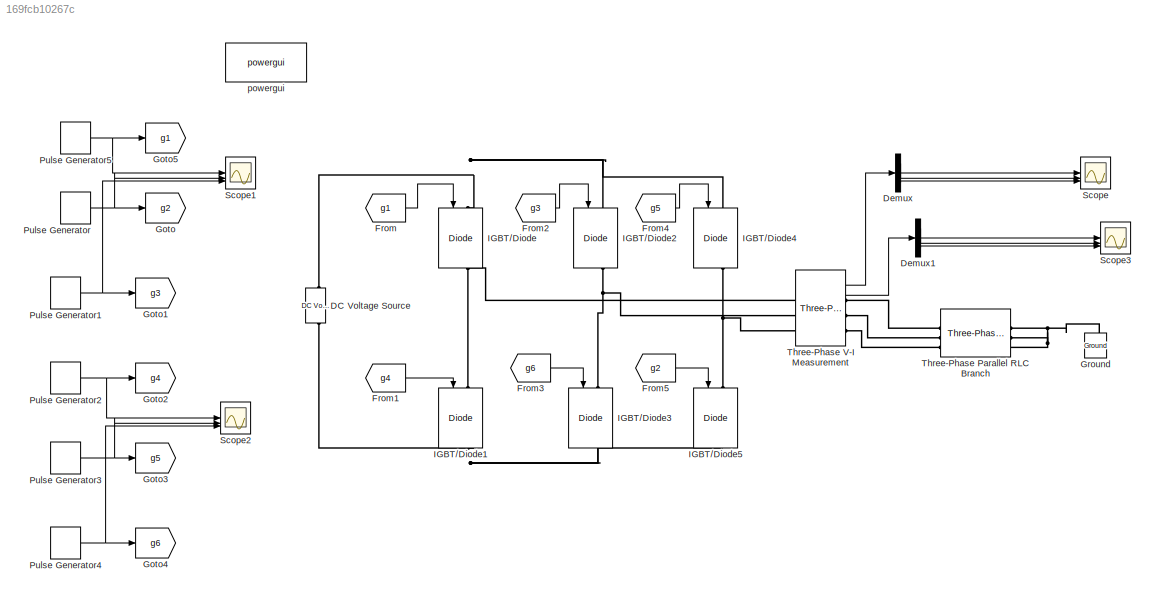
MODEL slx_169fcb10267c
KIND model
CONFIG AbsTol = auto
CONFIG EnableMultiTasking = off
CONFIG FixedStep = auto
CONFIG MaxStep = 20e-7
CONFIG MinStep = 20e-8
CONFIG RelTol = 1e-3
CONFIG SampleTimeConstraint = Unconstrained
CONFIG SolverName = ode45
CONFIG StartTime = 0.0
CONFIG StopTime = 1
BLOCK [Reference] DC Voltage Source  REF=spsDCVoltageSourceLib/DC Voltage Source
  SourceBlock = spsDCVoltageSourceLib/DC Voltage Source
  SourceType = DC Voltage Source
BLOCK [Demux] Demux
  Outputs = 3
BLOCK [Demux] Demux1
  Outputs = 3
BLOCK [From] From
  GotoTag = g1
BLOCK [From] From1
  GotoTag = g4
BLOCK [From] From2
  GotoTag = g3
BLOCK [From] From3
  GotoTag = g6
BLOCK [From] From4
  GotoTag = g5
BLOCK [From] From5
  GotoTag = g2
BLOCK [Goto] Goto
  GotoTag = g2
BLOCK [Goto] Goto1
  GotoTag = g3
BLOCK [Goto] Goto2
  GotoTag = g4
BLOCK [Goto] Goto3
  GotoTag = g5
BLOCK [Goto] Goto4
  GotoTag = g6
BLOCK [Goto] Goto5
  GotoTag = g1
BLOCK [Reference] Ground  REF=spsGroundLib/Ground
  NameLocation = right
  SourceBlock = spsGroundLib/Ground
  SourceType = Ground
BLOCK [Reference] IGBT//Diode  REF=spsIGBTDiodeLib/IGBT//Diode
  NameLocation = left
  SourceBlock = spsIGBTDiodeLib/IGBT//Diode
  SourceType = IGBT/Diode
BLOCK [Reference] IGBT//Diode1  REF=spsIGBTDiodeLib/IGBT//Diode
  NameLocation = left
  SourceBlock = spsIGBTDiodeLib/IGBT//Diode
  SourceType = IGBT/Diode
BLOCK [Reference] IGBT//Diode2  REF=spsIGBTDiodeLib/IGBT//Diode
  NameLocation = left
  SourceBlock = spsIGBTDiodeLib/IGBT//Diode
  SourceType = IGBT/Diode
BLOCK [Reference] IGBT//Diode3  REF=spsIGBTDiodeLib/IGBT//Diode
  NameLocation = left
  SourceBlock = spsIGBTDiodeLib/IGBT//Diode
  SourceType = IGBT/Diode
BLOCK [Reference] IGBT//Diode4  REF=spsIGBTDiodeLib/IGBT//Diode
  NameLocation = left
  SourceBlock = spsIGBTDiodeLib/IGBT//Diode
  SourceType = IGBT/Diode
BLOCK [Reference] IGBT//Diode5  REF=spsIGBTDiodeLib/IGBT//Diode
  NameLocation = left
  SourceBlock = spsIGBTDiodeLib/IGBT//Diode
  SourceType = IGBT/Diode
BLOCK [DiscretePulseGenerator] Pulse Generator
  Period = 0.1
  PhaseDelay = 0.1/6*1
  PulseType = Time based
  PulseWidth = 100/3
BLOCK [DiscretePulseGenerator] Pulse Generator1
  Period = 0.1
  PhaseDelay = 0.1/3
  PulseType = Time based
  PulseWidth = 100/3
BLOCK [DiscretePulseGenerator] Pulse Generator2
  Period = 0.1
  PhaseDelay = 0.1/2
  PulseType = Time based
  PulseWidth = 100/3
BLOCK [DiscretePulseGenerator] Pulse Generator3
  Period = 0.1
  PhaseDelay = 0.2/3
  PulseType = Time based
  PulseWidth = 100/3
BLOCK [DiscretePulseGenerator] Pulse Generator4
  Period = 0.1
  PhaseDelay = 0.5/6
  PulseType = Time based
  PulseWidth = 100/3
BLOCK [DiscretePulseGenerator] Pulse Generator5
  Period = 0.1
  PulseType = Time based
  PulseWidth = 100/3
BLOCK [Scope] Scope
  Floating = off
  NumInputPorts = 3
  ScopeSpecificationString = Simulink.scopes.TimeScopeBlockCfg('CurrentConfiguration', extmgr.ConfigurationSet(extmgr.Configuration('Core','General UI',true),extmgr.Configuration('Core','Source UI',true),extmgr.Configuration('Sources','WiredSimulink',true),extmgr.Configuration('Visuals','Time Domain',true,'SerializedDisplays',{struct('MinYLimReal','-31.24969','MaxYLimReal','31.24969','YLabelReal','','MinYLimMag','0.00000','Ma...<+2738ch>
BLOCK [Scope] Scope1
  Floating = off
  NumInputPorts = 3
  ScopeSpecificationString = Simulink.scopes.TimeScopeBlockCfg('CurrentConfiguration', extmgr.ConfigurationSet(extmgr.Configuration('Core','General UI',true,'FigureColor',[1 1 1]),extmgr.Configuration('Core','Source UI',true),extmgr.Configuration('Sources','WiredSimulink',true,'DataLoggingVariableName','ScopeData1'),extmgr.Configuration('Visuals','Time Domain',true,'SerializedDisplays',{struct('MinYLimReal','-0.125','MaxYLimR...<+3110ch>
BLOCK [Scope] Scope2
  Floating = off
  NumInputPorts = 3
  ScopeSpecificationString = Simulink.scopes.TimeScopeBlockCfg('CurrentConfiguration', extmgr.ConfigurationSet(extmgr.Configuration('Core','General UI',true),extmgr.Configuration('Core','Source UI',true),extmgr.Configuration('Sources','WiredSimulink',true,'DataLoggingVariableName','ScopeData2'),extmgr.Configuration('Visuals','Time Domain',true,'SerializedDisplays',{struct('MinYLimReal','-0.125','MaxYLimReal','1.125','YLabelRe...<+2762ch>
BLOCK [Scope] Scope3
  Floating = off
  NumInputPorts = 3
  ScopeSpecificationString = Simulink.scopes.TimeScopeBlockCfg('CurrentConfiguration', extmgr.ConfigurationSet(extmgr.Configuration('Core','General UI',true,'FigureColor',[1 1 1]),extmgr.Configuration('Core','Source UI',true),extmgr.Configuration('Sources','WiredSimulink',true,'DataLoggingVariableName','ScopeData1'),extmgr.Configuration('Visuals','Time Domain',true,'SerializedDisplays',{struct('MinYLimReal','-0.3125','MaxYLim...<+7681ch>
BLOCK [Reference] Three-Phase Parallel RLC Branch  REF=spsThreePhaseParallelRLCBranchLib/Three-Phase
Parallel RLC Branch
  AttributesFormatString = \n
  SourceBlock = spsThreePhaseParallelRLCBranchLib/Three-Phase\nParallel RLC Branch
  SourceType = Three-Phase Parallel RLC Branch
BLOCK [Reference] Three-Phase V-I Measurement  REF=spsThreePhaseVIMeasurementLib/Three-Phase
V-I Measurement
  SourceBlock = spsThreePhaseVIMeasurementLib/Three-Phase\nV-I Measurement
  SourceType = Three-Phase VI Measurement
BLOCK [Reference] powergui  REF=spspowerguiLib/powergui
  Priority = 1
  SourceBlock = spspowerguiLib/powergui
  SourceType = PSB option menu block
LINE Demux1:1 -> Scope3:1
LINE Demux1:2 -> Scope3:2
LINE Demux1:3 -> Scope3:3
LINE Demux:1 -> Scope:1
LINE Demux:2 -> Scope:2
LINE Demux:3 -> Scope:3
LINE From1:1 -> IGBT//Diode1:1
LINE From2:1 -> IGBT//Diode2:1
LINE From3:1 -> IGBT//Diode3:1
LINE From4:1 -> IGBT//Diode4:1
LINE From5:1 -> IGBT//Diode5:1
LINE From:1 -> IGBT//Diode:1
NET Pulse Generator1:1 -> Goto1:1, Scope1:3
NET Pulse Generator2:1 -> Goto2:1, Scope2:1
NET Pulse Generator3:1 -> Goto3:1, Scope2:2
NET Pulse Generator4:1 -> Goto4:1, Scope2:3
NET Pulse Generator5:1 -> Goto5:1, Scope1:1
NET Pulse Generator:1 -> Goto:1, Scope1:2
LINE Three-Phase V-I Measurement:1 -> Demux:1
LINE Three-Phase V-I Measurement:2 -> Demux1:1
PNET net1: DC Voltage Source:LConn1 -- IGBT//Diode1:RConn1 -- IGBT//Diode3:RConn1 -- IGBT//Diode5:RConn1
PNET net2: DC Voltage Source:RConn1 -- IGBT//Diode2:LConn1 -- IGBT//Diode4:LConn1 -- IGBT//Diode:LConn1
PNET net3: Ground:LConn1 -- Three-Phase Parallel RLC Branch:RConn1 -- Three-Phase Parallel RLC Branch:RConn2 -- Three-Phase Parallel RLC Branch:RConn3
PNET net4: IGBT//Diode1:LConn1 -- IGBT//Diode:RConn1 -- Three-Phase V-I Measurement:LConn1
PNET net5: IGBT//Diode2:RConn1 -- IGBT//Diode3:LConn1 -- Three-Phase V-I Measurement:LConn2
PNET net6: IGBT//Diode4:RConn1 -- IGBT//Diode5:LConn1 -- Three-Phase V-I Measurement:LConn3
PLINE Three-Phase Parallel RLC Branch:LConn1 -- Three-Phase V-I Measurement:RConn1
PLINE Three-Phase Parallel RLC Branch:LConn2 -- Three-Phase V-I Measurement:RConn2
PLINE Three-Phase Parallel RLC Branch:LConn3 -- Three-Phase V-I Measurement:RConn3
note: NET lines group one-source signal fan-out (src -> all destinations, sorted); 1:1 wires keep LINE; PNET lines group multi-terminal physical nets as a canonical sorted terminal list (undirected conserving connections); 2-terminal nets keep the pairwise PLINE form
